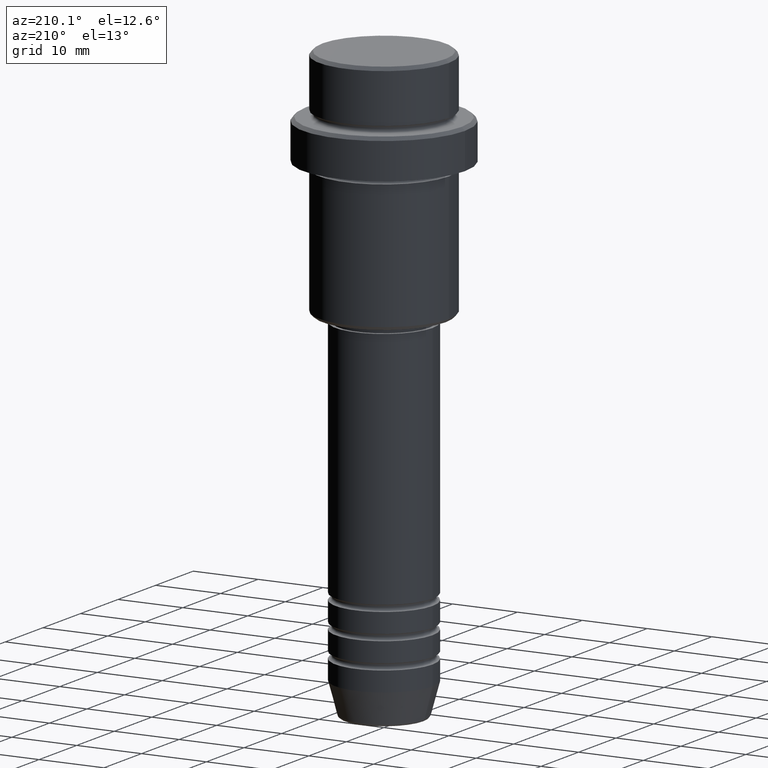
[diagram: clean part render]
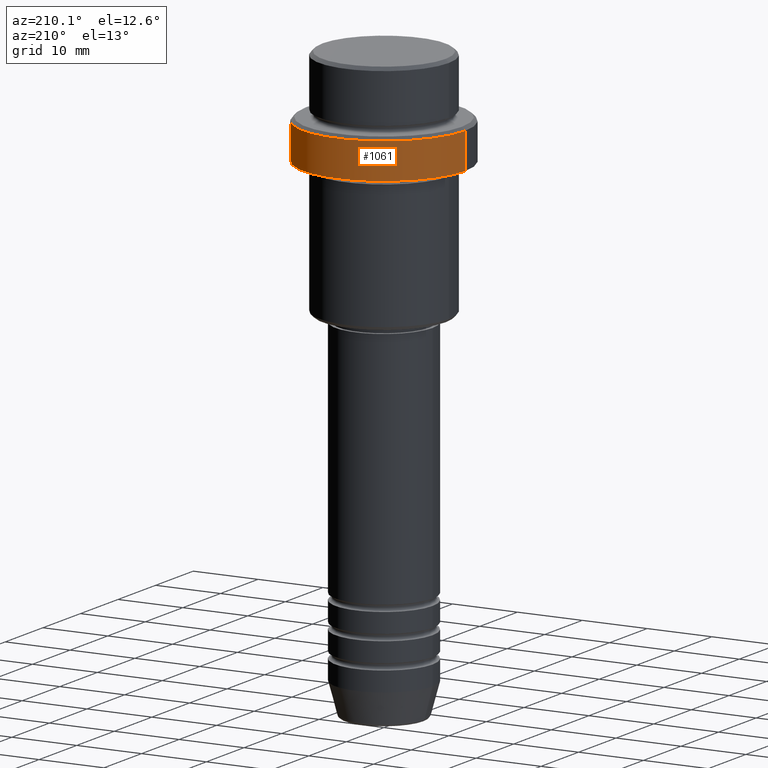
[diagram: same view with one face highlighted and labeled with its STEP entity id]
A machine part, auxiliary view. The second image highlights one B-rep face of the part: STEP entity #1061.
In plain terms, the highlighted cylindrical surface (partial cylindrical patch) has radius 12.5 mm, axis along (-0, -0, 1).
Its self-contained STEP definition (entity closure, byte-faithful):
#35 = CARTESIAN_POINT ( 'NONE',  ( -12.50000000000000000, 1.530808498934191521E-15, -9.500000000000007105 ) ) ;
#39 = VECTOR ( 'NONE', #1000, 1000.000000000000000 ) ;
#48 = CARTESIAN_POINT ( 'NONE',  ( -12.50000000000000000, 1.530808498934191521E-15, 0.000000000000000000 ) ) ;
#84 = CIRCLE ( 'NONE', #1407, 12.50000000000000000 ) ;
#86 = DIRECTION ( 'NONE',  ( 1.000000000000000000, 0.000000000000000000, 0.000000000000000000 ) ) ;
#135 = CARTESIAN_POINT ( 'NONE',  ( 12.50000000000000000, 0.000000000000000000, -15.00000000000000178 ) ) ;
#248 = ORIENTED_EDGE ( 'NONE', *, *, #430, .T. ) ;
#283 = ORIENTED_EDGE ( 'NONE', *, *, #1025, .T. ) ;
#321 = DIRECTION ( 'NONE',  ( 1.000000000000000000, 0.000000000000000000, 0.000000000000000000 ) ) ;
#334 = VERTEX_POINT ( 'NONE', #35 ) ;
#354 = LINE ( 'NONE', #488, #39 ) ;
#418 = DIRECTION ( 'NONE',  ( 0.000000000000000000, 0.000000000000000000, -1.000000000000000000 ) ) ;
#420 = CARTESIAN_POINT ( 'NONE',  ( 12.50000000000000000, 0.000000000000000000, -9.500000000000007105 ) ) ;
#427 = VECTOR ( 'NONE', #711, 1000.000000000000000 ) ;
#430 = EDGE_CURVE ( 'NONE', #1318, #1103, #84, .T. ) ;
#484 = DIRECTION ( 'NONE',  ( -0.000000000000000000, -0.000000000000000000, 1.000000000000000000 ) ) ;
#488 = CARTESIAN_POINT ( 'NONE',  ( 12.50000000000000000, 0.000000000000000000, 0.000000000000000000 ) ) ;
#527 = CARTESIAN_POINT ( 'NONE',  ( -12.50000000000000000, 1.530808498934191521E-15, -15.00000000000000178 ) ) ;
#598 = AXIS2_PLACEMENT_3D ( 'NONE', #1054, #746, #321 ) ;
#600 = EDGE_LOOP ( 'NONE', ( #248, #656, #283, #1367 ) ) ;
#621 = VERTEX_POINT ( 'NONE', #420 ) ;
#651 = EDGE_CURVE ( 'NONE', #1103, #334, #1029, .T. ) ;
#656 = ORIENTED_EDGE ( 'NONE', *, *, #651, .T. ) ;
#697 = CARTESIAN_POINT ( 'NONE',  ( 0.000000000000000000, 0.000000000000000000, -15.00000000000000178 ) ) ;
#711 = DIRECTION ( 'NONE',  ( -0.000000000000000000, -0.000000000000000000, 1.000000000000000000 ) ) ;
#713 = EDGE_CURVE ( 'NONE', #1318, #621, #354, .T. ) ;
#738 = CARTESIAN_POINT ( 'NONE',  ( 0.000000000000000000, 0.000000000000000000, -9.500000000000007105 ) ) ;
#746 = DIRECTION ( 'NONE',  ( -0.000000000000000000, -0.000000000000000000, 1.000000000000000000 ) ) ;
#823 = CIRCLE ( 'NONE', #1016, 12.50000000000000000 ) ;
#913 = DIRECTION ( 'NONE',  ( 1.000000000000000000, 0.000000000000000000, 0.000000000000000000 ) ) ;
#1000 = DIRECTION ( 'NONE',  ( -0.000000000000000000, -0.000000000000000000, 1.000000000000000000 ) ) ;
#1016 = AXIS2_PLACEMENT_3D ( 'NONE', #738, #418, #86 ) ;
#1025 = EDGE_CURVE ( 'NONE', #334, #621, #823, .T. ) ;
#1029 = LINE ( 'NONE', #48, #427 ) ;
#1054 = CARTESIAN_POINT ( 'NONE',  ( 0.000000000000000000, 0.000000000000000000, 0.000000000000000000 ) ) ;
#1061 = ADVANCED_FACE ( 'NONE', ( #1170 ), #1282, .T. ) ;
#1103 = VERTEX_POINT ( 'NONE', #527 ) ;
#1170 = FACE_OUTER_BOUND ( 'NONE', #600, .T. ) ;
#1282 = CYLINDRICAL_SURFACE ( 'NONE', #598, 12.50000000000000000 ) ;
#1318 = VERTEX_POINT ( 'NONE', #135 ) ;
#1367 = ORIENTED_EDGE ( 'NONE', *, *, #713, .F. ) ;
#1407 = AXIS2_PLACEMENT_3D ( 'NONE', #697, #484, #913 ) ;